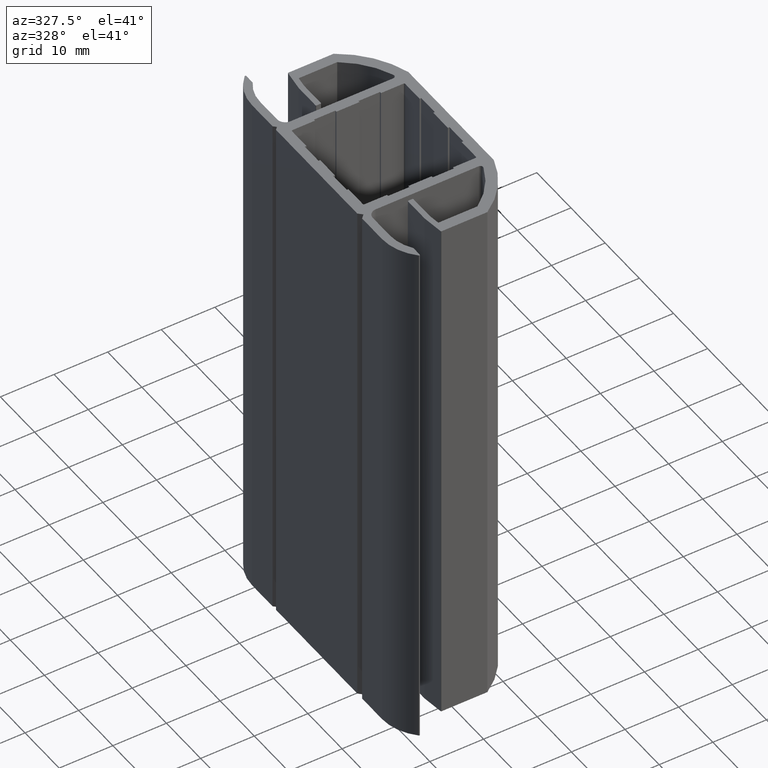
[diagram: clean part render]
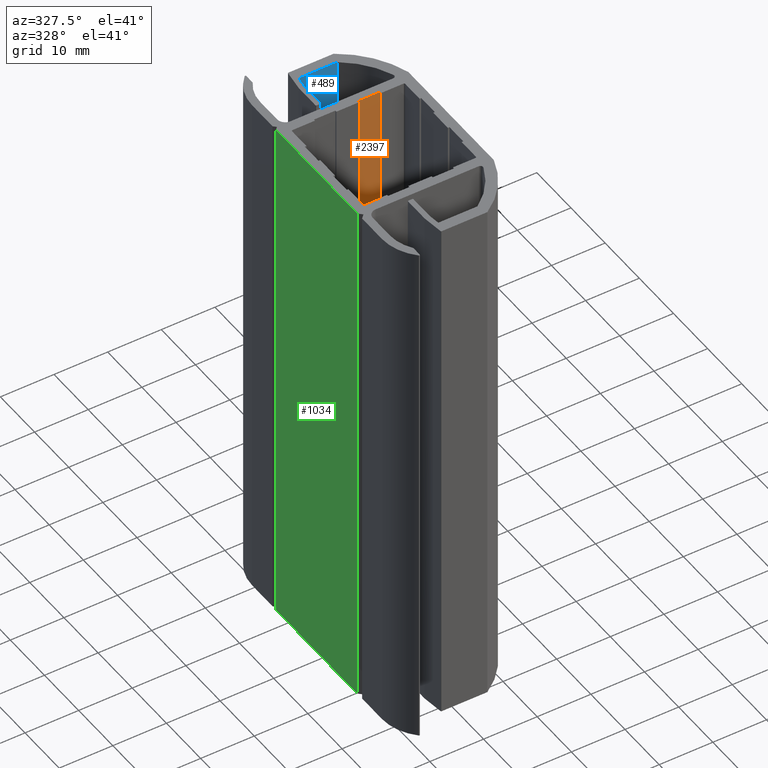
[diagram: same view with three faces highlighted in distinct colors, each labeled with its STEP entity id]
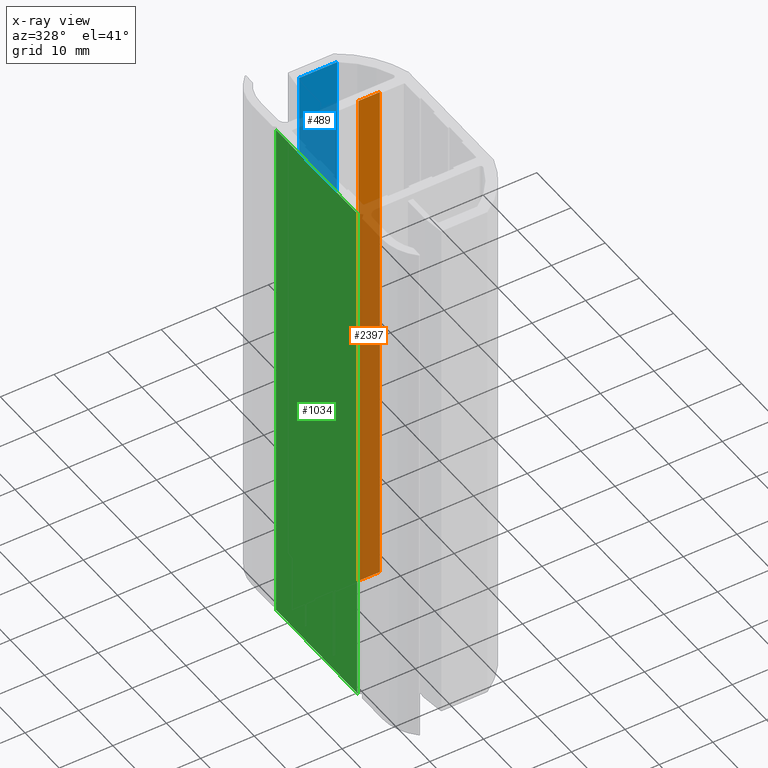
[diagram: x-ray of the same camera — body ghosted, the three highlighted faces saturated]
A machine part, auxiliary view with three faces highlighted in distinct colors.
The next image is the same camera in x-ray (body ghosted, the three faces saturated) — at least one of them is partly hidden behind the body in this view.
Their STEP definitions:

[orange] entity #2397 — the highlighted planar face has unit normal (0, -1, 0).
#2341=CARTESIAN_POINT('',(12.699999999999818,10.849999999999795,-100.0));
#2342=VERTEX_POINT('',#2341);
#2349=CARTESIAN_POINT('',(12.699999999999818,10.849999999999795,0.0));
#2350=VERTEX_POINT('',#2349);
#2351=CARTESIAN_POINT('',(12.699999999999818,10.849999999999795,-100.0));
#2352=DIRECTION('',(0.0,0.0,1.0));
#2353=VECTOR('',#2352,100.0);
#2354=LINE('',#2351,#2353);
#2355=EDGE_CURVE('',#2342,#2350,#2354,.T.);
#2367=CARTESIAN_POINT('',(12.699999999999818,10.849999999999795,-100.0));
#2368=DIRECTION('',(0.0,-1.0,0.0));
#2369=DIRECTION('',(1.0,0.0,0.0));
#2370=AXIS2_PLACEMENT_3D('',#2367,#2368,#2369);
#2371=PLANE('',#2370);
#2372=CARTESIAN_POINT('',(16.699999999999818,10.849999999999795,-100.0));
#2373=VERTEX_POINT('',#2372);
#2374=CARTESIAN_POINT('',(12.699999999999818,10.849999999999795,-100.0));
#2375=DIRECTION('',(1.0,0.0,0.0));
#2376=VECTOR('',#2375,4.0);
#2377=LINE('',#2374,#2376);
#2378=EDGE_CURVE('',#2342,#2373,#2377,.T.);
#2379=ORIENTED_EDGE('',*,*,#2378,.T.);
#2380=CARTESIAN_POINT('',(16.699999999999818,10.849999999999795,0.0));
#2381=VERTEX_POINT('',#2380);
#2382=CARTESIAN_POINT('',(16.699999999999818,10.849999999999795,-100.0));
#2383=DIRECTION('',(0.0,0.0,1.0));
#2384=VECTOR('',#2383,100.0);
#2385=LINE('',#2382,#2384);
#2386=EDGE_CURVE('',#2373,#2381,#2385,.T.);
#2387=ORIENTED_EDGE('',*,*,#2386,.T.);
#2388=CARTESIAN_POINT('',(12.699999999999818,10.849999999999795,0.0));
#2389=DIRECTION('',(1.0,0.0,0.0));
#2390=VECTOR('',#2389,4.0);
#2391=LINE('',#2388,#2390);
#2392=EDGE_CURVE('',#2350,#2381,#2391,.T.);
#2393=ORIENTED_EDGE('',*,*,#2392,.F.);
#2394=ORIENTED_EDGE('',*,*,#2355,.F.);
#2395=EDGE_LOOP('',(#2379,#2387,#2393,#2394));
#2396=FACE_OUTER_BOUND('',#2395,.T.);
#2397=ADVANCED_FACE('',(#2396),#2371,.T.);

[blue] entity #489 — the highlighted planar face has unit normal (0, -1, 0).
#431=CARTESIAN_POINT('',(7.796060440390875,20.499999999999801,-100.0));
#432=VERTEX_POINT('',#431);
#440=CARTESIAN_POINT('',(7.796060440390875,20.499999999999801,0.0));
#441=VERTEX_POINT('',#440);
#442=CARTESIAN_POINT('',(7.796060440390875,20.499999999999801,-100.0));
#443=DIRECTION('',(0.0,0.0,1.0));
#444=VECTOR('',#443,100.0);
#445=LINE('',#442,#444);
#446=EDGE_CURVE('',#432,#441,#445,.T.);
#459=CARTESIAN_POINT('',(7.796060440390875,20.499999999999801,-100.0));
#460=DIRECTION('',(0.0,-1.0,0.0));
#461=DIRECTION('',(1.0,0.0,0.0));
#462=AXIS2_PLACEMENT_3D('',#459,#460,#461);
#463=PLANE('',#462);
#464=CARTESIAN_POINT('',(14.857713118854008,20.499999999999801,-100.0));
#465=VERTEX_POINT('',#464);
#466=CARTESIAN_POINT('',(7.796060440390875,20.499999999999801,-100.0));
#467=DIRECTION('',(1.0,0.0,0.0));
#468=VECTOR('',#467,7.061652678463133);
#469=LINE('',#466,#468);
#470=EDGE_CURVE('',#432,#465,#469,.T.);
#471=ORIENTED_EDGE('',*,*,#470,.T.);
#472=CARTESIAN_POINT('',(14.857713118854008,20.499999999999801,0.0));
#473=VERTEX_POINT('',#472);
#474=CARTESIAN_POINT('',(14.857713118854008,20.499999999999801,-100.0));
#475=DIRECTION('',(0.0,0.0,1.0));
#476=VECTOR('',#475,100.0);
#477=LINE('',#474,#476);
#478=EDGE_CURVE('',#465,#473,#477,.T.);
#479=ORIENTED_EDGE('',*,*,#478,.T.);
#480=CARTESIAN_POINT('',(7.796060440390875,20.499999999999801,0.0));
#481=DIRECTION('',(1.0,0.0,0.0));
#482=VECTOR('',#481,7.061652678463133);
#483=LINE('',#480,#482);
#484=EDGE_CURVE('',#441,#473,#483,.T.);
#485=ORIENTED_EDGE('',*,*,#484,.F.);
#486=ORIENTED_EDGE('',*,*,#446,.F.);
#487=EDGE_LOOP('',(#471,#479,#485,#486));
#488=FACE_OUTER_BOUND('',#487,.T.);
#489=ADVANCED_FACE('',(#488),#463,.T.);

[green] entity #1034 — the highlighted planar face has unit normal (-1, 0, 0).
#978=CARTESIAN_POINT('',(-1.950000000000046,11.999999999999716,-100.0));
#979=VERTEX_POINT('',#978);
#986=CARTESIAN_POINT('',(-1.950000000000046,11.999999999999716,0.0));
#987=VERTEX_POINT('',#986);
#988=CARTESIAN_POINT('',(-1.950000000000046,11.999999999999716,-100.0));
#989=DIRECTION('',(0.0,0.0,1.0));
#990=VECTOR('',#989,100.0);
#991=LINE('',#988,#990);
#992=EDGE_CURVE('',#979,#987,#991,.T.);
#1004=CARTESIAN_POINT('',(-1.950000000000046,11.999999999999716,-100.0));
#1005=DIRECTION('',(-1.0,0.0,0.0));
#1006=DIRECTION('',(0.0,-1.0,0.0));
#1007=AXIS2_PLACEMENT_3D('',#1004,#1005,#1006);
#1008=PLANE('',#1007);
#1009=CARTESIAN_POINT('',(-1.950000000000046,-11.792893218813703,-100.0));
#1010=VERTEX_POINT('',#1009);
#1011=CARTESIAN_POINT('',(-1.950000000000046,11.999999999999716,-100.0));
#1012=DIRECTION('',(0.0,-1.0,0.0));
#1013=VECTOR('',#1012,23.792893218813418);
#1014=LINE('',#1011,#1013);
#1015=EDGE_CURVE('',#979,#1010,#1014,.T.);
#1016=ORIENTED_EDGE('',*,*,#1015,.T.);
#1017=CARTESIAN_POINT('',(-1.950000000000046,-11.792893218813703,0.0));
#1018=VERTEX_POINT('',#1017);
#1019=CARTESIAN_POINT('',(-1.950000000000046,-11.792893218813703,-100.0));
#1020=DIRECTION('',(0.0,0.0,1.0));
#1021=VECTOR('',#1020,100.0);
#1022=LINE('',#1019,#1021);
#1023=EDGE_CURVE('',#1010,#1018,#1022,.T.);
#1024=ORIENTED_EDGE('',*,*,#1023,.T.);
#1025=CARTESIAN_POINT('',(-1.950000000000046,11.999999999999716,0.0));
#1026=DIRECTION('',(0.0,-1.0,0.0));
#1027=VECTOR('',#1026,23.792893218813418);
#1028=LINE('',#1025,#1027);
#1029=EDGE_CURVE('',#987,#1018,#1028,.T.);
#1030=ORIENTED_EDGE('',*,*,#1029,.F.);
#1031=ORIENTED_EDGE('',*,*,#992,.F.);
#1032=EDGE_LOOP('',(#1016,#1024,#1030,#1031));
#1033=FACE_OUTER_BOUND('',#1032,.T.);
#1034=ADVANCED_FACE('',(#1033),#1008,.T.);